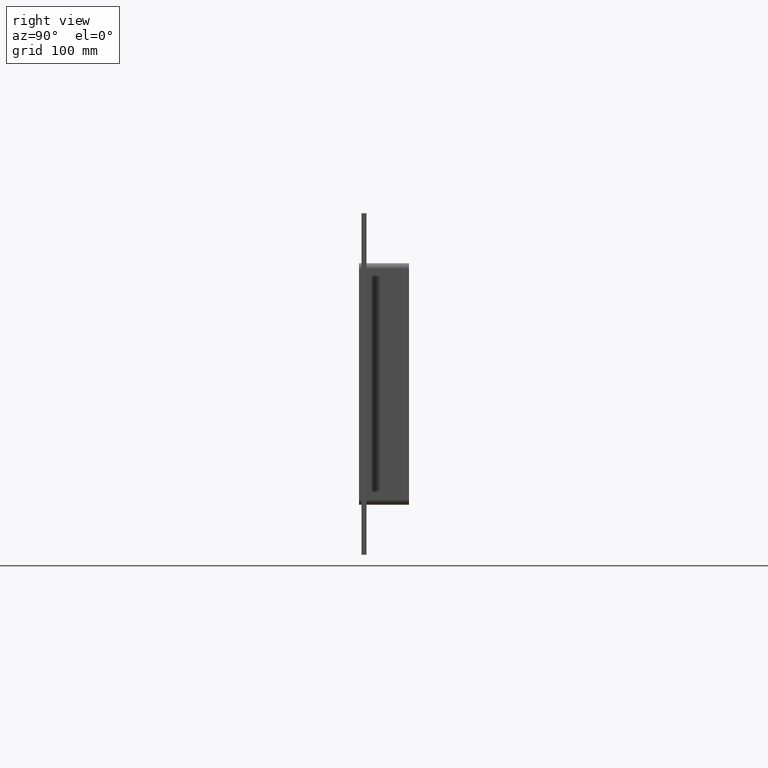
[diagram: clean part render]
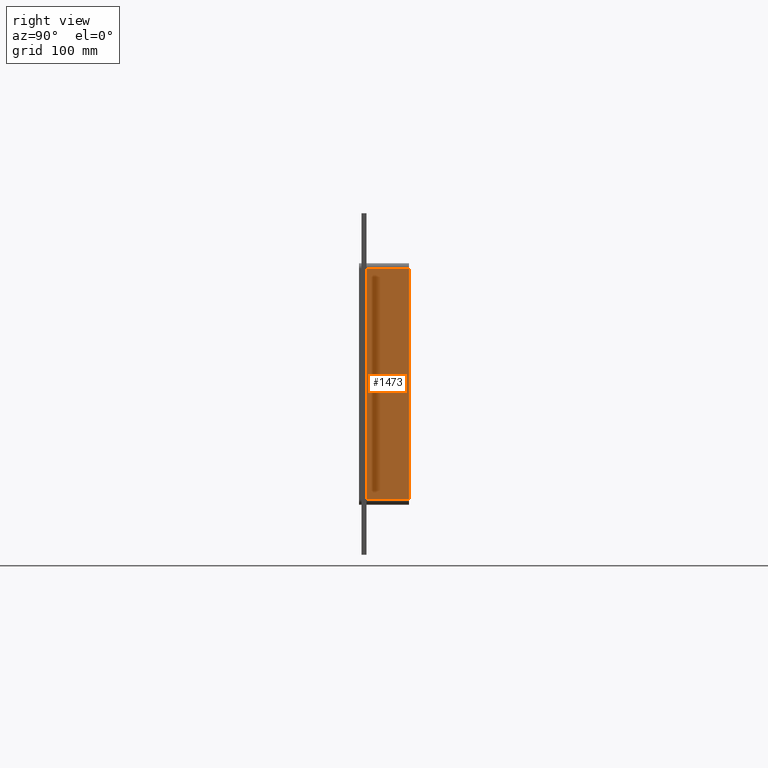
[diagram: same view with one face highlighted and labeled with its STEP entity id]
A machine part, right view. The second image highlights one B-rep face of the part: STEP entity #1473.
In plain terms, the highlighted planar face has unit normal (1, 0, 0).
Its self-contained STEP definition (entity closure, byte-faithful):
#1074=CARTESIAN_POINT('',(327.25,6.000000000000001,-139.0));
#1075=VERTEX_POINT('',#1074);
#1083=CARTESIAN_POINT('',(327.25,6.000000000000001,139.0));
#1084=VERTEX_POINT('',#1083);
#1085=CARTESIAN_POINT('',(327.25,6.000000000000001,139.0));
#1086=DIRECTION('',(0.0,0.0,-1.0));
#1087=VECTOR('',#1086,278.0);
#1088=LINE('',#1085,#1087);
#1089=EDGE_CURVE('',#1084,#1075,#1088,.T.);
#1400=CARTESIAN_POINT('',(327.25,57.0,139.0));
#1401=VERTEX_POINT('',#1400);
#1402=CARTESIAN_POINT('',(327.25,6.000000000000001,139.0));
#1403=DIRECTION('',(0.0,1.0,0.0));
#1404=VECTOR('',#1403,51.0);
#1405=LINE('',#1402,#1404);
#1406=EDGE_CURVE('',#1084,#1401,#1405,.T.);
#1450=CARTESIAN_POINT('',(327.25,0.0,145.0));
#1451=DIRECTION('',(1.0,0.0,0.0));
#1452=DIRECTION('',(0.0,0.0,-1.0));
#1453=AXIS2_PLACEMENT_3D('',#1450,#1451,#1452);
#1454=PLANE('',#1453);
#1455=ORIENTED_EDGE('',*,*,#1089,.T.);
#1456=CARTESIAN_POINT('',(327.25,57.0,-139.0));
#1457=VERTEX_POINT('',#1456);
#1458=CARTESIAN_POINT('',(327.25,57.0,-139.0));
#1459=DIRECTION('',(0.0,-1.0,0.0));
#1460=VECTOR('',#1459,51.0);
#1461=LINE('',#1458,#1460);
#1462=EDGE_CURVE('',#1457,#1075,#1461,.T.);
#1463=ORIENTED_EDGE('',*,*,#1462,.F.);
#1464=CARTESIAN_POINT('',(327.25,57.0,139.0));
#1465=DIRECTION('',(0.0,0.0,-1.0));
#1466=VECTOR('',#1465,278.0);
#1467=LINE('',#1464,#1466);
#1468=EDGE_CURVE('',#1401,#1457,#1467,.T.);
#1469=ORIENTED_EDGE('',*,*,#1468,.F.);
#1470=ORIENTED_EDGE('',*,*,#1406,.F.);
#1471=EDGE_LOOP('',(#1455,#1463,#1469,#1470));
#1472=FACE_OUTER_BOUND('',#1471,.T.);
#1473=ADVANCED_FACE('',(#1472),#1454,.T.);